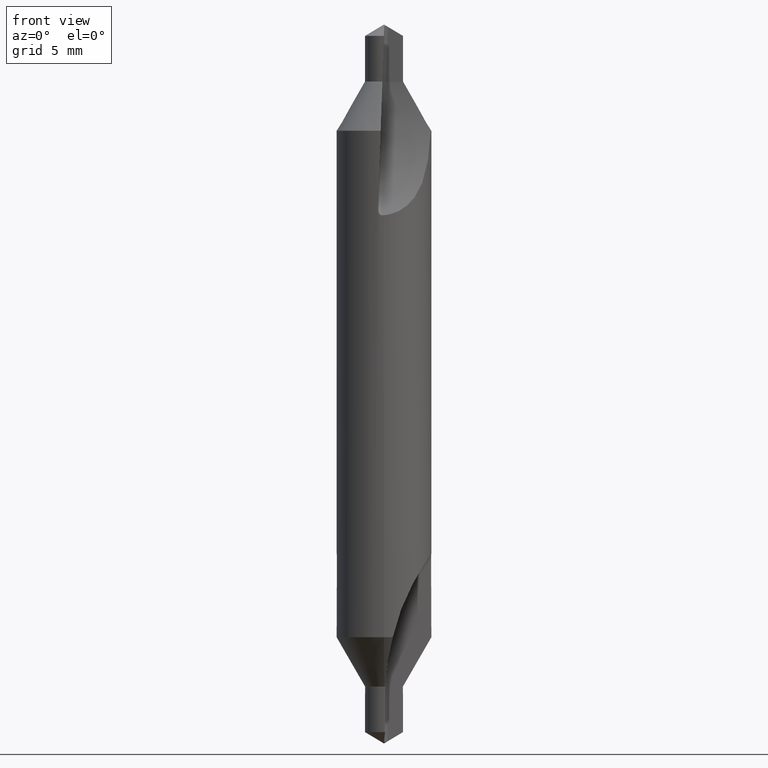
[diagram: clean part render]
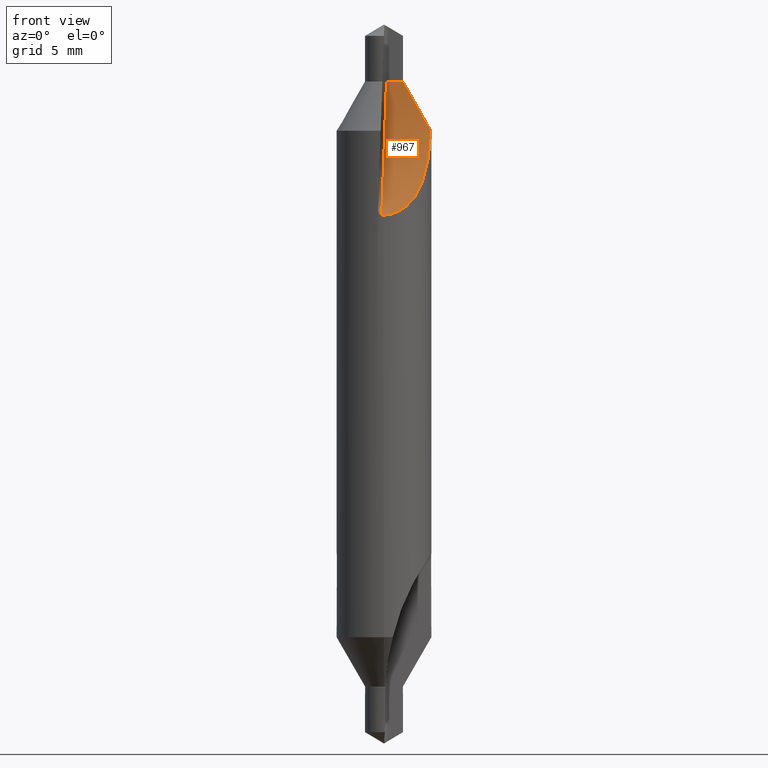
[diagram: same view with one face highlighted and labeled with its STEP entity id]
A machine part, front view. The second image highlights one B-rep face of the part: STEP entity #967.
In plain terms, the highlighted conical surface has half-angle 4 deg.
Its self-contained STEP definition (entity closure, byte-faithful):
#607=VERTEX_POINT('',#1378);
#623=VERTEX_POINT('',#1396);
#675=EDGE_CURVE('',#905,#623,#1449,.T.);
#713=EDGE_CURVE('',#607,#623,#1490,.T.);
#877=EDGE_CURVE('',#927,#989,#1673,.T.);
#905=VERTEX_POINT('',#1701);
#927=VERTEX_POINT('',#1725);
#967=ADVANCED_FACE('',(#1770),#1771,.F.);
#989=VERTEX_POINT('',#1793);
#1039=EDGE_CURVE('',#927,#905,#1847,.T.);
#1089=EDGE_CURVE('',#989,#607,#1901,.T.);
#1378=CARTESIAN_POINT('',(7.03638546133518E-014,-2.0,-8.03531185095262));
#1396=CARTESIAN_POINT('',(-0.0927012017595353,-1.99785046667471,-8.03970199515271));
#1449=CIRCLE('',#2772,8.95653218794182);
#1490=B_SPLINE_CURVE_WITH_KNOTS('',3,(#2921,#2922,#2923,#2924,#2925,#2926,#2927,#2928,#2929,#2930,#2931,#2932,#2933,#2934,#2935,#2936,#2937,#2938,#2939,#2940,#2941,#2942,#2943,#2944),.UNSPECIFIED.,.F.,.F.,(4,2,2,2,2,2,2,2,2,2,2,4),(9.30180473111236,10.1708844546265,11.0399641781407,11.6940415873926,12.3481189966446,12.6685788565356,12.9890387164265,13.2753931146789,13.5617475129312,13.8481019111836,14.1344563094359,14.4223159110577),.UNSPECIFIED.);
#1673=B_SPLINE_CURVE_WITH_KNOTS('',3,(#3318,#3319,#3320,#3321,#3322,#3323,#3324,#3325,#3326,#3327,#3328,#3329,#3330,#3331,#3332,#3333,#3334,#3335,#3336,#3337,#3338,#3339,#3340,#3341,#3342,#3343,#3344,#3345,#3346,#3347,#3348,#3349,#3350,#3351,#3352,#3353,#3354,#3355,#3356,#3357,#3358,#3359),.UNSPECIFIED.,.F.,.F.,(4,2,2,2,2,2,2,2,2,2,2,2,2,2,2,2,2,2,2,2,4),(0.0,0.460556280451964,0.921112560903929,1.37605491611127,1.8309972713186,2.07401581434501,2.15932536490105,2.20198014017906,2.22330752781807,2.24463491545708,2.26685987166081,2.28908482786453,2.33353474027197,2.42243456508686,2.67741247191541,3.14933901583268,3.62126555974994,4.7587775413773,5.89628952300466,7.03380150463202,8.17131348625938),.UNSPECIFIED.);
#1701=CARTESIAN_POINT('',(0.104073763748375,-0.000389752058184561,-2.40480424313118));
#1725=CARTESIAN_POINT('',(0.815576872956172,-0.0501732229183254,-2.42965047920049));
#1770=FACE_OUTER_BOUND('',#3626,.T.);
#1771=CONICAL_SURFACE('',#3627,8.64935206272734,0.0698131700797732);
#1793=CARTESIAN_POINT('',(1.96603670965652,-0.367014517809514,-4.4784609718347));
#1847=LINE('',#3768,#3769);
#1901=B_SPLINE_CURVE_WITH_KNOTS('',3,(#3909,#3910,#3911,#3912,#3913,#3914,#3915,#3916,#3917,#3918,#3919,#3920,#3921,#3922,#3923,#3924,#3925,#3926,#3927,#3928,#3929,#3930,#3931,#3932),.UNSPECIFIED.,.F.,.F.,(4,2,2,2,2,2,2,2,2,2,2,4),(9.30180473111236,10.1708844546265,11.0399641781407,11.6940415873926,12.3481189966446,12.6685788565356,12.9890387164265,13.2753931146789,13.5617475129312,13.8481019111836,14.1344563094359,14.4223159110577),.UNSPECIFIED.);
#2772=AXIS2_PLACEMENT_3D('',#4391,#4392,#4393);
#2921=CARTESIAN_POINT('',(1.97386817961198,-0.322248986833604,-4.27610679801779));
#2922=CARTESIAN_POINT('',(1.96335641364115,-0.386637150342108,-4.58387963646657));
#2923=CARTESIAN_POINT('',(1.94707092815768,-0.46728853313802,-4.88778016218112));
#2924=CARTESIAN_POINT('',(1.89259501454194,-0.653856171381738,-5.47201914355199));
#2925=CARTESIAN_POINT('',(1.85426242163427,-0.759750910720951,-5.75235120537763));
#2926=CARTESIAN_POINT('',(1.75911345147841,-0.956193167883764,-6.21075685649751));
#2927=CARTESIAN_POINT('',(1.7037211909737,-1.05521396676654,-6.4217935242125));
#2928=CARTESIAN_POINT('',(1.55649565210555,-1.2623248432869,-6.82466076476743));
#2929=CARTESIAN_POINT('',(1.46399466817587,-1.37016627325817,-7.01637483276808));
#2930=CARTESIAN_POINT('',(1.30692099018019,-1.51555635103273,-7.26074003160855));
#2931=CARTESIAN_POINT('',(1.2449150901556,-1.56763565648275,-7.34573680906198));
#2932=CARTESIAN_POINT('',(1.10673181656546,-1.66806470450702,-7.50550745584998));
#2933=CARTESIAN_POINT('',(1.03040807959618,-1.71630153367831,-7.58022565471823));
#2934=CARTESIAN_POINT('',(0.886964434481921,-1.79422076636279,-7.69966702507473));
#2935=CARTESIAN_POINT('',(0.81148859480647,-1.83008395575304,-7.75401065311518));
#2936=CARTESIAN_POINT('',(0.647863349728905,-1.89420012336617,-7.85157032210084));
#2937=CARTESIAN_POINT('',(0.559699259275755,-1.92242310034594,-7.89478144743573));
#2938=CARTESIAN_POINT('',(0.375486079425088,-1.96671927070333,-7.96533703139687));
#2939=CARTESIAN_POINT('',(0.279247722889503,-1.98281030928743,-7.99274863051418));
#2940=CARTESIAN_POINT('',(0.0849580103877956,-2.00057445543816,-8.02960960054331));
#2941=CARTESIAN_POINT('',(-0.0130954283047072,-2.00223343848672,-8.03905479908477));
#2942=CARTESIAN_POINT('',(-0.204210869322812,-1.9918594778997,-8.04079133353824));
#2943=CARTESIAN_POINT('',(-0.302148523569139,-1.97948603881439,-8.03303439100696));
#2944=CARTESIAN_POINT('',(-0.398457057642752,-1.95990611336734,-8.01611650052612));
#3318=CARTESIAN_POINT('',(-1.23553442456266,0.0561295988867018,-3.15657492380312));
#3319=CARTESIAN_POINT('',(-1.15855846027703,0.0630300803368618,-3.02392842367497));
#3320=CARTESIAN_POINT('',(-1.07384320165404,0.0673755619683696,-2.87793625029604));
#3321=CARTESIAN_POINT('',(-0.904696773492983,0.068307230714838,-2.58576292153766));
#3322=CARTESIAN_POINT('',(-0.820283632505142,0.0648933895979676,-2.43957132926207));
#3323=CARTESIAN_POINT('',(-0.668175770533444,0.0528599972971877,-2.17528963736259));
#3324=CARTESIAN_POINT('',(-0.585349182850028,0.0431208904130634,-2.03084997792281));
#3325=CARTESIAN_POINT('',(-0.420142248917731,0.0160140323210626,-1.74244027810062));
#3326=CARTESIAN_POINT('',(-0.338033571345432,-0.00136194648821027,-1.598315478467));
#3327=CARTESIAN_POINT('',(-0.220695974367634,-0.030058729651707,-1.39947862121767));
#3328=CARTESIAN_POINT('',(-0.171607228675763,-0.0431495383526702,-1.31660397048114));
#3329=CARTESIAN_POINT('',(-0.108984927381399,-0.0589811423347501,-1.22825516284342));
#3330=CARTESIAN_POINT('',(-0.0906794281016766,-0.0635270492405978,-1.20396168231095));
#3331=CARTESIAN_POINT('',(-0.061097203198968,-0.069730197670861,-1.17429212902253));
#3332=CARTESIAN_POINT('',(-0.0509851822087644,-0.071670735961048,-1.16563307124811));
#3333=CARTESIAN_POINT('',(-0.0346023160784823,-0.0742354458571852,-1.15593425055287));
#3334=CARTESIAN_POINT('',(-0.0289488352175111,-0.0750292923246756,-1.15326799574342));
#3335=CARTESIAN_POINT('',(-0.0168760989554051,-0.0764514287834674,-1.14956564585873));
#3336=CARTESIAN_POINT('',(-0.0104578063921576,-0.0770799158685529,-1.14852648753809));
#3337=CARTESIAN_POINT('',(0.00401052333818724,-0.0780826913621521,-1.14917314899054));
#3338=CARTESIAN_POINT('',(0.0106363896206226,-0.07834423240807,-1.15089660816523));
#3339=CARTESIAN_POINT('',(0.0231028871842105,-0.0785993802854742,-1.15586689921275));
#3340=CARTESIAN_POINT('',(0.0289356884080849,-0.0785897482263651,-1.15913351342826));
#3341=CARTESIAN_POINT('',(0.0458774217843999,-0.0783083108375626,-1.1705182990235));
#3342=CARTESIAN_POINT('',(0.0563764868477855,-0.0777901190531067,-1.18014975354435));
#3343=CARTESIAN_POINT('',(0.0871878458977855,-0.075787855705969,-1.21242237990537));
#3344=CARTESIAN_POINT('',(0.106380740538537,-0.0738922022743602,-1.23801327014426));
#3345=CARTESIAN_POINT('',(0.172691676101205,-0.067105785987258,-1.33126509987267));
#3346=CARTESIAN_POINT('',(0.225466110178468,-0.0611124057167137,-1.41833481777772));
#3347=CARTESIAN_POINT('',(0.350300106594681,-0.0494455329737031,-1.62567600125356));
#3348=CARTESIAN_POINT('',(0.43715646299008,-0.0439402943899844,-1.77520418103256));
#3349=CARTESIAN_POINT('',(0.610743733568616,-0.0405744660661458,-2.07442438511047));
#3350=CARTESIAN_POINT('',(0.697230417950294,-0.0426728271612181,-2.22425756533754));
#3351=CARTESIAN_POINT('',(0.964969186432984,-0.0590593328237322,-2.68886244837248));
#3352=CARTESIAN_POINT('',(1.1621155098454,-0.0887514627826785,-3.03237260399255));
#3353=CARTESIAN_POINT('',(1.55735356674337,-0.190680109907944,-3.73140494513399));
#3354=CARTESIAN_POINT('',(1.75534972572037,-0.262906799414414,-4.08698259779746));
#3355=CARTESIAN_POINT('',(2.13571248834638,-0.450679304122339,-4.7936490486264));
#3356=CARTESIAN_POINT('',(2.31810559097269,-0.56627898615364,-5.14489945857058));
#3357=CARTESIAN_POINT('',(2.65148315009538,-0.836271750357302,-5.82763737056263));
#3358=CARTESIAN_POINT('',(2.8023974564035,-0.990699928522582,-6.15914524527796));
#3359=CARTESIAN_POINT('',(2.9309398050376,-1.15923002416144,-6.47354127147388));
#3626=EDGE_LOOP('',(#4769,#4770,#4771,#4772,#4773));
#3627=AXIS2_PLACEMENT_3D('',#4774,#4775,#4776);
#3768=CARTESIAN_POINT('',(4.49427819176907,-0.307569877322537,-2.55811355998374));
#3769=VECTOR('',#4835,1.0);
#3909=CARTESIAN_POINT('',(1.97386817961198,-0.322248986833604,-4.27610679801779));
#3910=CARTESIAN_POINT('',(1.96335641364115,-0.386637150342108,-4.58387963646657));
#3911=CARTESIAN_POINT('',(1.94707092815768,-0.46728853313802,-4.88778016218112));
#3912=CARTESIAN_POINT('',(1.89259501454194,-0.653856171381738,-5.47201914355199));
#3913=CARTESIAN_POINT('',(1.85426242163427,-0.759750910720951,-5.75235120537763));
#3914=CARTESIAN_POINT('',(1.75911345147841,-0.956193167883764,-6.21075685649751));
#3915=CARTESIAN_POINT('',(1.7037211909737,-1.05521396676654,-6.4217935242125));
#3916=CARTESIAN_POINT('',(1.55649565210555,-1.2623248432869,-6.82466076476743));
#3917=CARTESIAN_POINT('',(1.46399466817587,-1.37016627325817,-7.01637483276808));
#3918=CARTESIAN_POINT('',(1.30692099018019,-1.51555635103273,-7.26074003160855));
#3919=CARTESIAN_POINT('',(1.2449150901556,-1.56763565648275,-7.34573680906198));
#3920=CARTESIAN_POINT('',(1.10673181656546,-1.66806470450702,-7.50550745584998));
#3921=CARTESIAN_POINT('',(1.03040807959618,-1.71630153367831,-7.58022565471823));
#3922=CARTESIAN_POINT('',(0.886964434481921,-1.79422076636279,-7.69966702507473));
#3923=CARTESIAN_POINT('',(0.81148859480647,-1.83008395575304,-7.75401065311518));
#3924=CARTESIAN_POINT('',(0.647863349728905,-1.89420012336617,-7.85157032210084));
#3925=CARTESIAN_POINT('',(0.559699259275755,-1.92242310034594,-7.89478144743573));
#3926=CARTESIAN_POINT('',(0.375486079425088,-1.96671927070333,-7.96533703139687));
#3927=CARTESIAN_POINT('',(0.279247722889503,-1.98281030928743,-7.99274863051418));
#3928=CARTESIAN_POINT('',(0.0849580103877956,-2.00057445543816,-8.02960960054331));
#3929=CARTESIAN_POINT('',(-0.0130954283047072,-2.00223343848672,-8.03905479908477));
#3930=CARTESIAN_POINT('',(-0.204210869322812,-1.9918594778997,-8.04079133353824));
#3931=CARTESIAN_POINT('',(-0.302148523569139,-1.97948603881439,-8.03303439100696));
#3932=CARTESIAN_POINT('',(-0.398457057642752,-1.95990611336734,-8.01611650052612));
#4391=CARTESIAN_POINT('',(0.104073763748374,-8.95692194,-2.40480424313118));
#4392=DIRECTION('',(-0.999390827019096,0.0,0.0348994967025007));
#4393=DIRECTION('',(0.0348994967025007,0.0,0.999390827019096));
#4769=ORIENTED_EDGE('',*,*,#1089,.F.);
#4770=ORIENTED_EDGE('',*,*,#877,.F.);
#4771=ORIENTED_EDGE('',*,*,#1039,.T.);
#4772=ORIENTED_EDGE('',*,*,#675,.T.);
#4773=ORIENTED_EDGE('',*,*,#713,.F.);
#4774=CARTESIAN_POINT('',(4.49427819177257,-8.95692194,-2.55811355998386));
#4775=DIRECTION('',(-0.999390827019096,0.0,0.0348994967025007));
#4776=DIRECTION('',(0.0348994967025007,0.0,0.999390827019096));
#4835=DIRECTION('',(-0.996956361193685,0.0697564737441253,0.034814483282576));